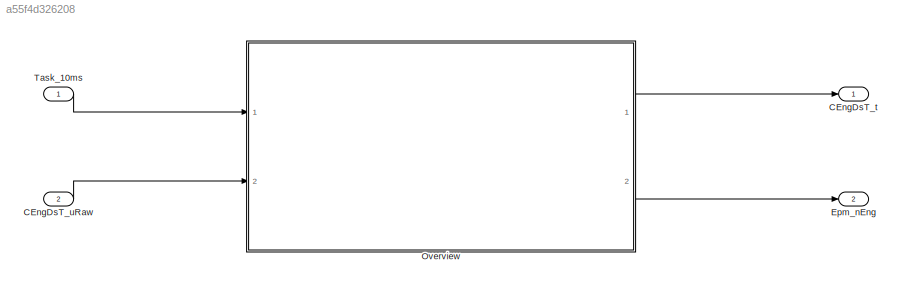
MODEL slx_a55f4d326208
KIND model
CONFIG AbsTol = auto
CONFIG EnableMultiTasking = off
CONFIG FixedStep = auto
CONFIG MaxStep = auto
CONFIG MinStep = auto
CONFIG RelTol = 1e-3
CONFIG SampleTimeConstraint = Unconstrained
CONFIG SolverName = VariableStepAuto
CONFIG StartTime = 0.0
CONFIG StopTime = 10.0
BLOCK [Outport] CEngDsT_t
BLOCK [Inport] CEngDsT_uRaw
  Port = 2
BLOCK [Outport] Epm_nEng
  Port = 2
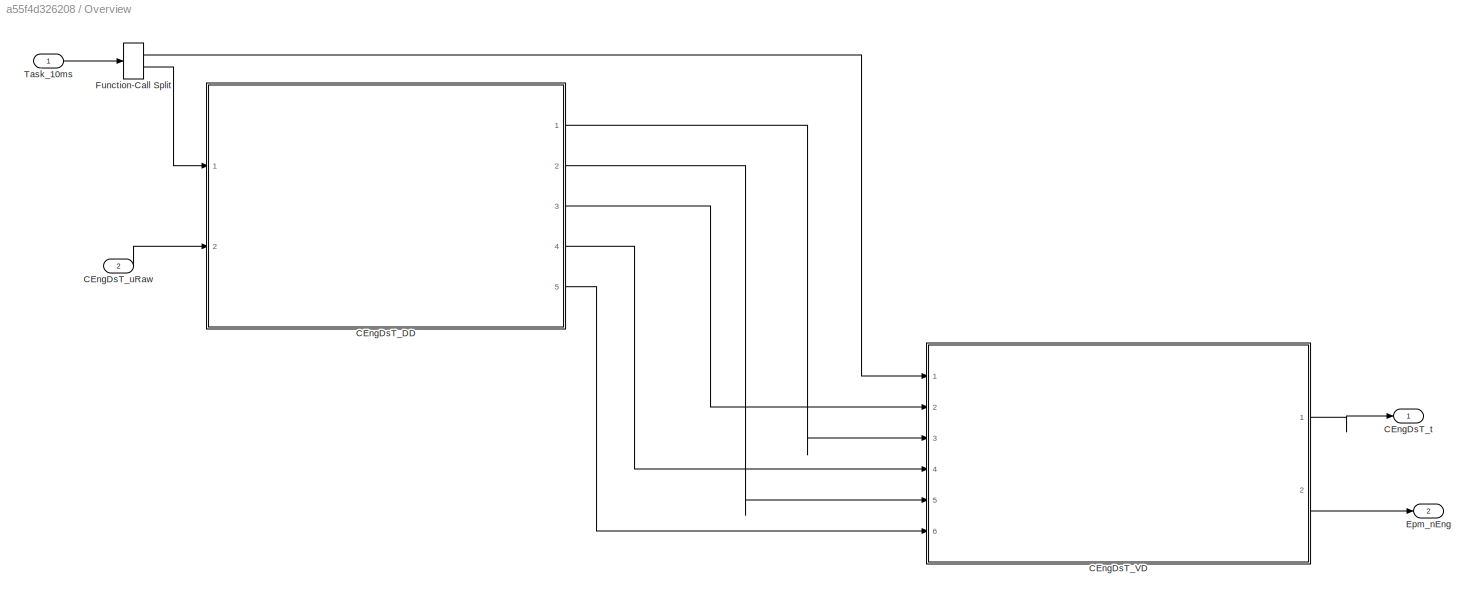
BLOCK [SubSystem] Overview
  Ports = [2, 2]
  RequestExecContextInheritance = off
BLOCK [ModelReference] Overview/CEngDsT_DD
  ModelNameDialog = CEngDsT_DD
  ModelReferenceVersion = 1.57
  Ports = [2, 5]
  ScheduleRates = on
BLOCK [ModelReference] Overview/CEngDsT_VD
  ModelNameDialog = CEngDsT_VD
  ModelReferenceVersion = 6.4
  Ports = [6, 2]
  ScheduleRates = on
BLOCK [Outport] Overview/CEngDsT_t
  VectorParamsAs1DForOutWhenUnconnected = off
BLOCK [Inport] Overview/CEngDsT_uRaw
  Port = 2
BLOCK [Outport] Overview/Epm_nEng
  Port = 2
BLOCK [FunctionCallSplit] Overview/Function-Call Split
  IconShape = distinctive
  NumOutputPorts = 2
  OutputPortLayout = default
  Ports = [1, 2]
BLOCK [Inport] Overview/Task_10ms
BLOCK [Inport] Task_10ms
  OutputFunctionCall = on
LINE CEngDsT_uRaw:1 -> Overview:2
LINE Overview/CEngDsT_DD:1 -> Overview/CEngDsT_VD:3
LINE Overview/CEngDsT_DD:2 -> Overview/CEngDsT_VD:5
LINE Overview/CEngDsT_DD:3 -> Overview/CEngDsT_VD:2
LINE Overview/CEngDsT_DD:4 -> Overview/CEngDsT_VD:4
LINE Overview/CEngDsT_DD:5 -> Overview/CEngDsT_VD:6
LINE Overview/CEngDsT_VD:1 -> Overview/CEngDsT_t:1
LINE Overview/CEngDsT_VD:2 -> Overview/Epm_nEng:1
LINE Overview/CEngDsT_uRaw:1 -> Overview/CEngDsT_DD:2
LINE Overview/Function-Call Split:1 -> Overview/CEngDsT_VD:1
LINE Overview/Function-Call Split:2 -> Overview/CEngDsT_DD:1
LINE Overview/Task_10ms:1 -> Overview/Function-Call Split:1
LINE Overview:1 -> CEngDsT_t:1
LINE Overview:2 -> Epm_nEng:1
LINE Task_10ms:1 -> Overview:1
